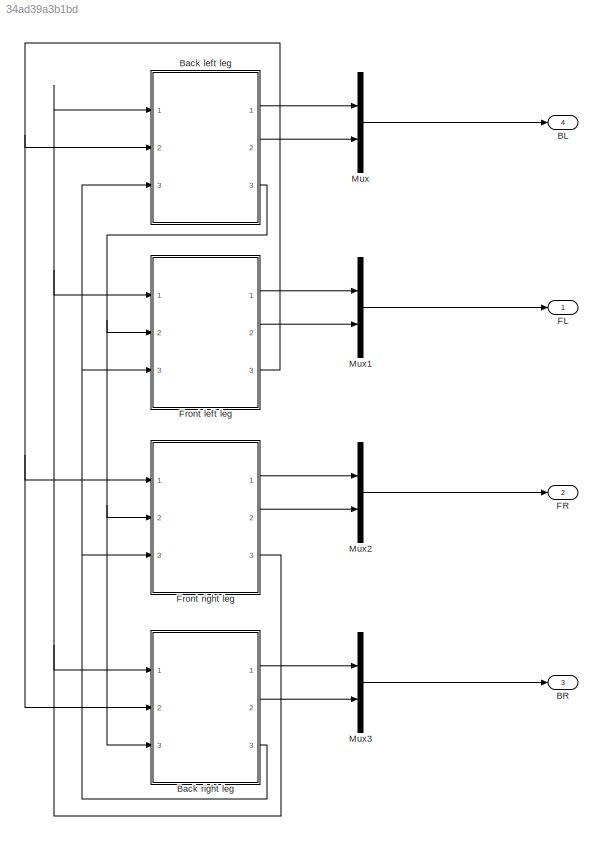
MODEL slx_34ad39a3b1bd
KIND model
CONFIG AbsTol = auto
CONFIG FixedStep = 0.001
CONFIG MaxStep = auto
CONFIG MinStep = auto
CONFIG RelTol = 1e-3
CONFIG SampleTimeConstraint = Unconstrained
CONFIG Solver = ode8
CONFIG SolverMode = Auto
CONFIG SolverName = ode8
CONFIG StartTime = 0.0
CONFIG StopTime = 20
BLOCK [Outport] BL
  IconDisplay = Port number
  Port = 4
BLOCK [Outport] BR
  IconDisplay = Port number
  Port = 3
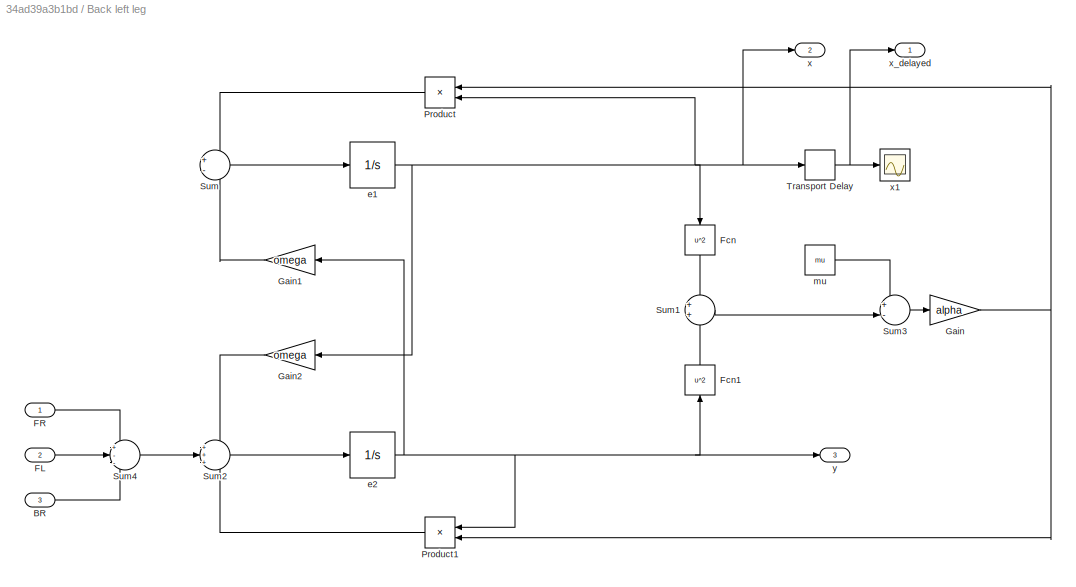
BLOCK [SubSystem] Back left leg
  Ports = [3, 3]
  RequestExecContextInheritance = off
BLOCK [Inport] Back left leg/BR
  IconDisplay = Port number
  Port = 3
BLOCK [Inport] Back left leg/FL
  IconDisplay = Port number
  Port = 2
BLOCK [Inport] Back left leg/FR
  IconDisplay = Port number
BLOCK [Fcn] Back left leg/Fcn
  Expr = u^2
BLOCK [Fcn] Back left leg/Fcn1
  Expr = u^2
BLOCK [Gain] Back left leg/Gain
  Gain = alpha
  OutDataTypeStr = Inherit: Inherit via internal rule
  ParamDataTypeStr = Inherit: Inherit via internal rule
  SaturateOnIntegerOverflow = off
BLOCK [Gain] Back left leg/Gain1
  Gain = omega
  OutDataTypeStr = Inherit: Inherit via internal rule
  ParamDataTypeStr = Inherit: Inherit via internal rule
  SaturateOnIntegerOverflow = off
BLOCK [Gain] Back left leg/Gain2
  Gain = omega
  OutDataTypeStr = Inherit: Inherit via internal rule
  ParamDataTypeStr = Inherit: Inherit via internal rule
  SaturateOnIntegerOverflow = off
BLOCK [Product] Back left leg/Product
  InputSameDT = off
  OutDataTypeStr = Inherit: Inherit via internal rule
  Ports = [2, 1]
  RndMeth = Floor
  SaturateOnIntegerOverflow = off
BLOCK [Product] Back left leg/Product1
  InputSameDT = off
  OutDataTypeStr = Inherit: Inherit via internal rule
  Ports = [2, 1]
  RndMeth = Floor
  SaturateOnIntegerOverflow = off
BLOCK [Sum] Back left leg/Sum
  IconShape = round
  InputSameDT = off
  Inputs = +-
  OutDataTypeStr = Inherit: Inherit via internal rule
  Ports = [2, 1]
  SaturateOnIntegerOverflow = off
BLOCK [Sum] Back left leg/Sum1
  IconShape = round
  InputSameDT = off
  OutDataTypeStr = Inherit: Inherit via internal rule
  Ports = [2, 1]
  SaturateOnIntegerOverflow = off
BLOCK [Sum] Back left leg/Sum2
  IconShape = round
  InputSameDT = off
  Inputs = +++
  OutDataTypeStr = Inherit: Inherit via internal rule
  Ports = [3, 1]
  SaturateOnIntegerOverflow = off
BLOCK [Sum] Back left leg/Sum3
  IconShape = round
  InputSameDT = off
  Inputs = +-|
  OutDataTypeStr = Inherit: Inherit via internal rule
  Ports = [2, 1]
  SaturateOnIntegerOverflow = off
BLOCK [Sum] Back left leg/Sum4
  IconShape = round
  InputSameDT = off
  Inputs = +--
  OutDataTypeStr = Inherit: Inherit via internal rule
  Ports = [3, 1]
  SaturateOnIntegerOverflow = off
BLOCK [TransportDelay] Back left leg/Transport Delay
  DelayTime = tau
  Ports = [1, 1]
BLOCK [Integrator] Back left leg/e1
  Ports = [1, 1]
BLOCK [Integrator] Back left leg/e2
  Ports = [1, 1]
BLOCK [Constant] Back left leg/mu
  Value = mu
BLOCK [Outport] Back left leg/x
  IconDisplay = Port number
  Port = 2
BLOCK [Scope] Back left leg/x1
  Floating = off
  NumInputPorts = 1
  Ports = [1]
  SaveName = ScopeData2
BLOCK [Outport] Back left leg/x_delayed
  IconDisplay = Port number
BLOCK [Outport] Back left leg/y
  IconDisplay = Port number
  Port = 3
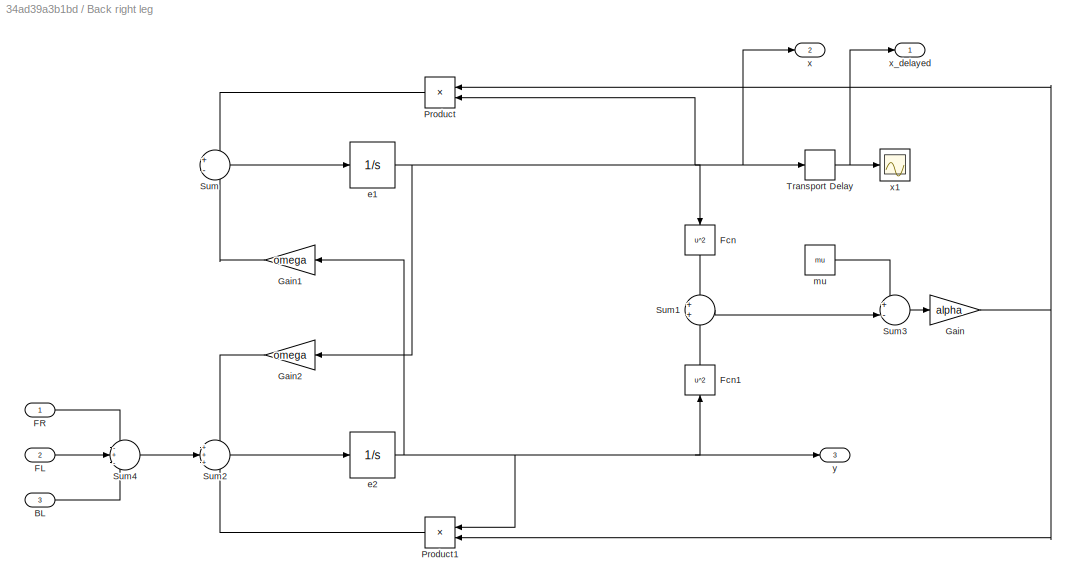
BLOCK [SubSystem] Back right leg
  Ports = [3, 3]
  RequestExecContextInheritance = off
BLOCK [Inport] Back right leg/BL
  IconDisplay = Port number
  Port = 3
BLOCK [Inport] Back right leg/FL
  IconDisplay = Port number
  Port = 2
BLOCK [Inport] Back right leg/FR
  IconDisplay = Port number
BLOCK [Fcn] Back right leg/Fcn
  Expr = u^2
BLOCK [Fcn] Back right leg/Fcn1
  Expr = u^2
BLOCK [Gain] Back right leg/Gain
  Gain = alpha
  OutDataTypeStr = Inherit: Inherit via internal rule
  ParamDataTypeStr = Inherit: Inherit via internal rule
  SaturateOnIntegerOverflow = off
BLOCK [Gain] Back right leg/Gain1
  Gain = omega
  OutDataTypeStr = Inherit: Inherit via internal rule
  ParamDataTypeStr = Inherit: Inherit via internal rule
  SaturateOnIntegerOverflow = off
BLOCK [Gain] Back right leg/Gain2
  Gain = omega
  OutDataTypeStr = Inherit: Inherit via internal rule
  ParamDataTypeStr = Inherit: Inherit via internal rule
  SaturateOnIntegerOverflow = off
BLOCK [Product] Back right leg/Product
  InputSameDT = off
  OutDataTypeStr = Inherit: Inherit via internal rule
  Ports = [2, 1]
  RndMeth = Floor
  SaturateOnIntegerOverflow = off
BLOCK [Product] Back right leg/Product1
  InputSameDT = off
  OutDataTypeStr = Inherit: Inherit via internal rule
  Ports = [2, 1]
  RndMeth = Floor
  SaturateOnIntegerOverflow = off
BLOCK [Sum] Back right leg/Sum
  IconShape = round
  InputSameDT = off
  Inputs = +-
  OutDataTypeStr = Inherit: Inherit via internal rule
  Ports = [2, 1]
  SaturateOnIntegerOverflow = off
BLOCK [Sum] Back right leg/Sum1
  IconShape = round
  InputSameDT = off
  OutDataTypeStr = Inherit: Inherit via internal rule
  Ports = [2, 1]
  SaturateOnIntegerOverflow = off
BLOCK [Sum] Back right leg/Sum2
  IconShape = round
  InputSameDT = off
  Inputs = +++
  OutDataTypeStr = Inherit: Inherit via internal rule
  Ports = [3, 1]
  SaturateOnIntegerOverflow = off
BLOCK [Sum] Back right leg/Sum3
  IconShape = round
  InputSameDT = off
  Inputs = +-|
  OutDataTypeStr = Inherit: Inherit via internal rule
  Ports = [2, 1]
  SaturateOnIntegerOverflow = off
BLOCK [Sum] Back right leg/Sum4
  IconShape = round
  InputSameDT = off
  Inputs = -+-
  OutDataTypeStr = Inherit: Inherit via internal rule
  Ports = [3, 1]
  SaturateOnIntegerOverflow = off
BLOCK [TransportDelay] Back right leg/Transport Delay
  DelayTime = tau
  Ports = [1, 1]
BLOCK [Integrator] Back right leg/e1
  Ports = [1, 1]
BLOCK [Integrator] Back right leg/e2
  Ports = [1, 1]
BLOCK [Constant] Back right leg/mu
  Value = mu
BLOCK [Outport] Back right leg/x
  IconDisplay = Port number
  Port = 2
BLOCK [Scope] Back right leg/x1
  Floating = off
  NumInputPorts = 1
  Ports = [1]
  SaveName = ScopeData2
BLOCK [Outport] Back right leg/x_delayed
  IconDisplay = Port number
BLOCK [Outport] Back right leg/y
  IconDisplay = Port number
  Port = 3
BLOCK [Outport] FL
  IconDisplay = Port number
BLOCK [Outport] FR
  IconDisplay = Port number
  Port = 2
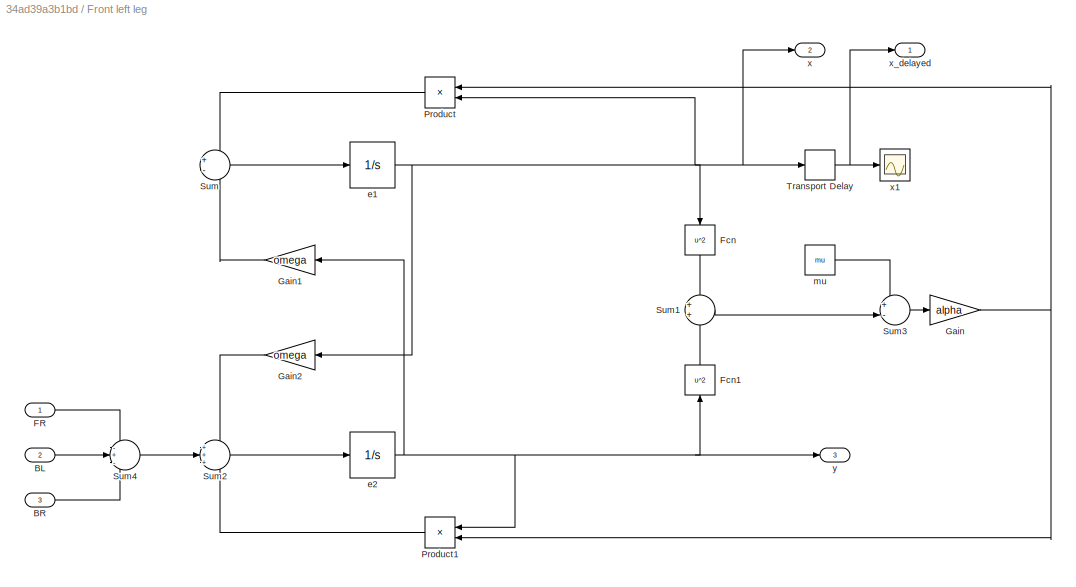
BLOCK [SubSystem] Front left leg
  Ports = [3, 3]
  RequestExecContextInheritance = off
BLOCK [Inport] Front left leg/BL
  IconDisplay = Port number
  Port = 2
BLOCK [Inport] Front left leg/BR
  IconDisplay = Port number
  Port = 3
BLOCK [Inport] Front left leg/FR
  IconDisplay = Port number
BLOCK [Fcn] Front left leg/Fcn
  Expr = u^2
BLOCK [Fcn] Front left leg/Fcn1
  Expr = u^2
BLOCK [Gain] Front left leg/Gain
  Gain = alpha
  OutDataTypeStr = Inherit: Inherit via internal rule
  ParamDataTypeStr = Inherit: Inherit via internal rule
  SaturateOnIntegerOverflow = off
BLOCK [Gain] Front left leg/Gain1
  Gain = omega
  OutDataTypeStr = Inherit: Inherit via internal rule
  ParamDataTypeStr = Inherit: Inherit via internal rule
  SaturateOnIntegerOverflow = off
BLOCK [Gain] Front left leg/Gain2
  Gain = omega
  OutDataTypeStr = Inherit: Inherit via internal rule
  ParamDataTypeStr = Inherit: Inherit via internal rule
  SaturateOnIntegerOverflow = off
BLOCK [Product] Front left leg/Product
  InputSameDT = off
  OutDataTypeStr = Inherit: Inherit via internal rule
  Ports = [2, 1]
  RndMeth = Floor
  SaturateOnIntegerOverflow = off
BLOCK [Product] Front left leg/Product1
  InputSameDT = off
  OutDataTypeStr = Inherit: Inherit via internal rule
  Ports = [2, 1]
  RndMeth = Floor
  SaturateOnIntegerOverflow = off
BLOCK [Sum] Front left leg/Sum
  IconShape = round
  InputSameDT = off
  Inputs = +-
  OutDataTypeStr = Inherit: Inherit via internal rule
  Ports = [2, 1]
  SaturateOnIntegerOverflow = off
BLOCK [Sum] Front left leg/Sum1
  IconShape = round
  InputSameDT = off
  OutDataTypeStr = Inherit: Inherit via internal rule
  Ports = [2, 1]
  SaturateOnIntegerOverflow = off
BLOCK [Sum] Front left leg/Sum2
  IconShape = round
  InputSameDT = off
  Inputs = +++
  OutDataTypeStr = Inherit: Inherit via internal rule
  Ports = [3, 1]
  SaturateOnIntegerOverflow = off
BLOCK [Sum] Front left leg/Sum3
  IconShape = round
  InputSameDT = off
  Inputs = +-|
  OutDataTypeStr = Inherit: Inherit via internal rule
  Ports = [2, 1]
  SaturateOnIntegerOverflow = off
BLOCK [Sum] Front left leg/Sum4
  IconShape = round
  InputSameDT = off
  Inputs = -+-
  OutDataTypeStr = Inherit: Inherit via internal rule
  Ports = [3, 1]
  SaturateOnIntegerOverflow = off
BLOCK [TransportDelay] Front left leg/Transport Delay
  DelayTime = tau
  Ports = [1, 1]
BLOCK [Integrator] Front left leg/e1
  InitialCondition = 1
  Ports = [1, 1]
BLOCK [Integrator] Front left leg/e2
  Ports = [1, 1]
BLOCK [Constant] Front left leg/mu
  Value = mu
BLOCK [Outport] Front left leg/x
  IconDisplay = Port number
  Port = 2
BLOCK [Scope] Front left leg/x1
  Floating = off
  NumInputPorts = 1
  Ports = [1]
  SaveName = ScopeData2
BLOCK [Outport] Front left leg/x_delayed
  IconDisplay = Port number
BLOCK [Outport] Front left leg/y
  IconDisplay = Port number
  Port = 3
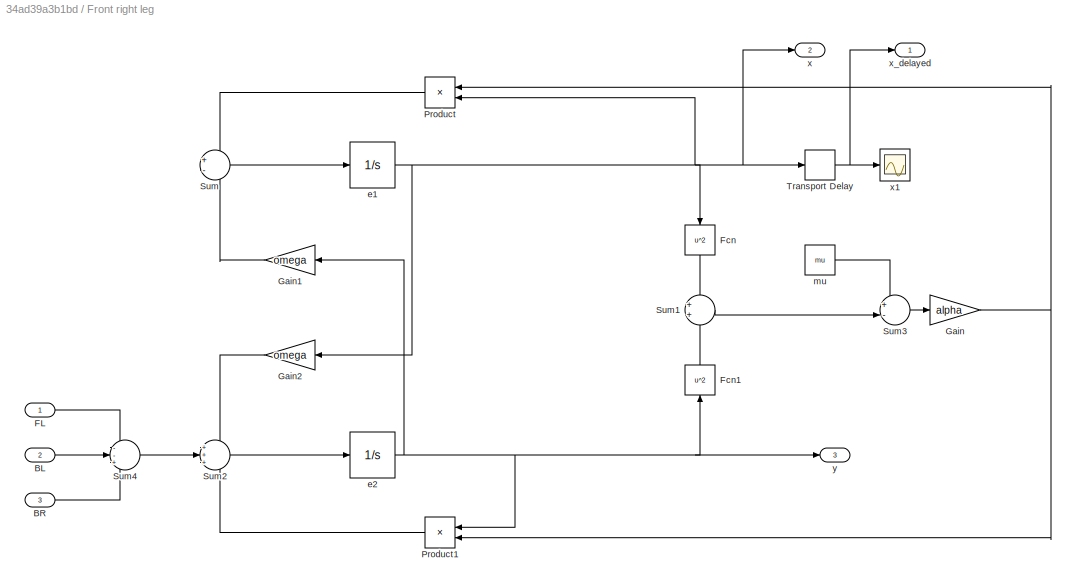
BLOCK [SubSystem] Front right leg
  Ports = [3, 3]
  RequestExecContextInheritance = off
BLOCK [Inport] Front right leg/BL
  IconDisplay = Port number
  Port = 2
BLOCK [Inport] Front right leg/BR
  IconDisplay = Port number
  Port = 3
BLOCK [Inport] Front right leg/FL
  IconDisplay = Port number
BLOCK [Fcn] Front right leg/Fcn
  Expr = u^2
BLOCK [Fcn] Front right leg/Fcn1
  Expr = u^2
BLOCK [Gain] Front right leg/Gain
  Gain = alpha
  OutDataTypeStr = Inherit: Inherit via internal rule
  ParamDataTypeStr = Inherit: Inherit via internal rule
  SaturateOnIntegerOverflow = off
BLOCK [Gain] Front right leg/Gain1
  Gain = omega
  OutDataTypeStr = Inherit: Inherit via internal rule
  ParamDataTypeStr = Inherit: Inherit via internal rule
  SaturateOnIntegerOverflow = off
BLOCK [Gain] Front right leg/Gain2
  Gain = omega
  OutDataTypeStr = Inherit: Inherit via internal rule
  ParamDataTypeStr = Inherit: Inherit via internal rule
  SaturateOnIntegerOverflow = off
BLOCK [Product] Front right leg/Product
  InputSameDT = off
  OutDataTypeStr = Inherit: Inherit via internal rule
  Ports = [2, 1]
  RndMeth = Floor
  SaturateOnIntegerOverflow = off
BLOCK [Product] Front right leg/Product1
  InputSameDT = off
  OutDataTypeStr = Inherit: Inherit via internal rule
  Ports = [2, 1]
  RndMeth = Floor
  SaturateOnIntegerOverflow = off
BLOCK [Sum] Front right leg/Sum
  IconShape = round
  InputSameDT = off
  Inputs = +-
  OutDataTypeStr = Inherit: Inherit via internal rule
  Ports = [2, 1]
  SaturateOnIntegerOverflow = off
BLOCK [Sum] Front right leg/Sum1
  IconShape = round
  InputSameDT = off
  OutDataTypeStr = Inherit: Inherit via internal rule
  Ports = [2, 1]
  SaturateOnIntegerOverflow = off
BLOCK [Sum] Front right leg/Sum2
  IconShape = round
  InputSameDT = off
  Inputs = +++
  OutDataTypeStr = Inherit: Inherit via internal rule
  Ports = [3, 1]
  SaturateOnIntegerOverflow = off
BLOCK [Sum] Front right leg/Sum3
  IconShape = round
  InputSameDT = off
  Inputs = +-|
  OutDataTypeStr = Inherit: Inherit via internal rule
  Ports = [2, 1]
  SaturateOnIntegerOverflow = off
BLOCK [Sum] Front right leg/Sum4
  IconShape = round
  InputSameDT = off
  Inputs = --+
  OutDataTypeStr = Inherit: Inherit via internal rule
  Ports = [3, 1]
  SaturateOnIntegerOverflow = off
BLOCK [TransportDelay] Front right leg/Transport Delay
  DelayTime = tau
  Ports = [1, 1]
BLOCK [Integrator] Front right leg/e1
  Ports = [1, 1]
BLOCK [Integrator] Front right leg/e2
  Ports = [1, 1]
BLOCK [Constant] Front right leg/mu
  Value = mu
BLOCK [Outport] Front right leg/x
  IconDisplay = Port number
  Port = 2
BLOCK [Scope] Front right leg/x1
  Floating = off
  NumInputPorts = 1
  Ports = [1]
  SaveName = ScopeData2
BLOCK [Outport] Front right leg/x_delayed
  IconDisplay = Port number
BLOCK [Outport] Front right leg/y
  IconDisplay = Port number
  Port = 3
BLOCK [Mux] Mux
  DisplayOption = bar
  Inputs = 2
  Ports = [2, 1]
BLOCK [Mux] Mux1
  DisplayOption = bar
  Inputs = 2
  Ports = [2, 1]
BLOCK [Mux] Mux2
  DisplayOption = bar
  Inputs = 2
  Ports = [2, 1]
BLOCK [Mux] Mux3
  DisplayOption = bar
  Inputs = 2
  Ports = [2, 1]
LINE Back left leg/BR:1 -> Back left leg/Sum4:3
LINE Back left leg/FL:1 -> Back left leg/Sum4:2
LINE Back left leg/FR:1 -> Back left leg/Sum4:1
LINE Back left leg/Fcn1:1 -> Back left leg/Sum1:2
LINE Back left leg/Fcn:1 -> Back left leg/Sum1:1
LINE Back left leg/Gain1:1 -> Back left leg/Sum:2
LINE Back left leg/Gain2:1 -> Back left leg/Sum2:1
NET Back left leg/Gain:1 -> Back left leg/Product1:2, Back left leg/Product:1
LINE Back left leg/Product1:1 -> Back left leg/Sum2:3
LINE Back left leg/Product:1 -> Back left leg/Sum:1
LINE Back left leg/Sum1:1 -> Back left leg/Sum3:2
LINE Back left leg/Sum2:1 -> Back left leg/e2:1
LINE Back left leg/Sum3:1 -> Back left leg/Gain:1
LINE Back left leg/Sum4:1 -> Back left leg/Sum2:2
LINE Back left leg/Sum:1 -> Back left leg/e1:1
NET Back left leg/Transport Delay:1 -> Back left leg/x1:1, Back left leg/x_delayed:1
NET Back left leg/e1:1 -> Back left leg/Fcn:1, Back left leg/Gain2:1, Back left leg/Product:2, Back left leg/Transport Delay:1, Back left leg/x:1
NET Back left leg/e2:1 -> Back left leg/Fcn1:1, Back left leg/Gain1:1, Back left leg/Product1:1, Back left leg/y:1
LINE Back left leg/mu:1 -> Back left leg/Sum3:1
LINE Back left leg:1 -> Mux:1
LINE Back left leg:2 -> Mux:2
NET Back left leg:3 -> Back right leg:3, Front left leg:2, Front right leg:2
LINE Back right leg/BL:1 -> Back right leg/Sum4:3
LINE Back right leg/FL:1 -> Back right leg/Sum4:2
LINE Back right leg/FR:1 -> Back right leg/Sum4:1
LINE Back right leg/Fcn1:1 -> Back right leg/Sum1:2
LINE Back right leg/Fcn:1 -> Back right leg/Sum1:1
LINE Back right leg/Gain1:1 -> Back right leg/Sum:2
LINE Back right leg/Gain2:1 -> Back right leg/Sum2:1
NET Back right leg/Gain:1 -> Back right leg/Product1:2, Back right leg/Product:1
LINE Back right leg/Product1:1 -> Back right leg/Sum2:3
LINE Back right leg/Product:1 -> Back right leg/Sum:1
LINE Back right leg/Sum1:1 -> Back right leg/Sum3:2
LINE Back right leg/Sum2:1 -> Back right leg/e2:1
LINE Back right leg/Sum3:1 -> Back right leg/Gain:1
LINE Back right leg/Sum4:1 -> Back right leg/Sum2:2
LINE Back right leg/Sum:1 -> Back right leg/e1:1
NET Back right leg/Transport Delay:1 -> Back right leg/x1:1, Back right leg/x_delayed:1
NET Back right leg/e1:1 -> Back right leg/Fcn:1, Back right leg/Gain2:1, Back right leg/Product:2, Back right leg/Transport Delay:1, Back right leg/x:1
NET Back right leg/e2:1 -> Back right leg/Fcn1:1, Back right leg/Gain1:1, Back right leg/Product1:1, Back right leg/y:1
LINE Back right leg/mu:1 -> Back right leg/Sum3:1
LINE Back right leg:1 -> Mux3:1
LINE Back right leg:2 -> Mux3:2
NET Back right leg:3 -> Back left leg:3, Front left leg:3, Front right leg:3
LINE Front left leg/BL:1 -> Front left leg/Sum4:2
LINE Front left leg/BR:1 -> Front left leg/Sum4:3
LINE Front left leg/FR:1 -> Front left leg/Sum4:1
LINE Front left leg/Fcn1:1 -> Front left leg/Sum1:2
LINE Front left leg/Fcn:1 -> Front left leg/Sum1:1
LINE Front left leg/Gain1:1 -> Front left leg/Sum:2
LINE Front left leg/Gain2:1 -> Front left leg/Sum2:1
NET Front left leg/Gain:1 -> Front left leg/Product1:2, Front left leg/Product:1
LINE Front left leg/Product1:1 -> Front left leg/Sum2:3
LINE Front left leg/Product:1 -> Front left leg/Sum:1
LINE Front left leg/Sum1:1 -> Front left leg/Sum3:2
LINE Front left leg/Sum2:1 -> Front left leg/e2:1
LINE Front left leg/Sum3:1 -> Front left leg/Gain:1
LINE Front left leg/Sum4:1 -> Front left leg/Sum2:2
LINE Front left leg/Sum:1 -> Front left leg/e1:1
NET Front left leg/Transport Delay:1 -> Front left leg/x1:1, Front left leg/x_delayed:1
NET Front left leg/e1:1 -> Front left leg/Fcn:1, Front left leg/Gain2:1, Front left leg/Product:2, Front left leg/Transport Delay:1, Front left leg/x:1
NET Front left leg/e2:1 -> Front left leg/Fcn1:1, Front left leg/Gain1:1, Front left leg/Product1:1, Front left leg/y:1
LINE Front left leg/mu:1 -> Front left leg/Sum3:1
LINE Front left leg:1 -> Mux1:1
LINE Front left leg:2 -> Mux1:2
NET Front left leg:3 -> Back left leg:2, Back right leg:2, Front right leg:1
LINE Front right leg/BL:1 -> Front right leg/Sum4:2
LINE Front right leg/BR:1 -> Front right leg/Sum4:3
LINE Front right leg/FL:1 -> Front right leg/Sum4:1
LINE Front right leg/Fcn1:1 -> Front right leg/Sum1:2
LINE Front right leg/Fcn:1 -> Front right leg/Sum1:1
LINE Front right leg/Gain1:1 -> Front right leg/Sum:2
LINE Front right leg/Gain2:1 -> Front right leg/Sum2:1
NET Front right leg/Gain:1 -> Front right leg/Product1:2, Front right leg/Product:1
LINE Front right leg/Product1:1 -> Front right leg/Sum2:3
LINE Front right leg/Product:1 -> Front right leg/Sum:1
LINE Front right leg/Sum1:1 -> Front right leg/Sum3:2
LINE Front right leg/Sum2:1 -> Front right leg/e2:1
LINE Front right leg/Sum3:1 -> Front right leg/Gain:1
LINE Front right leg/Sum4:1 -> Front right leg/Sum2:2
LINE Front right leg/Sum:1 -> Front right leg/e1:1
NET Front right leg/Transport Delay:1 -> Front right leg/x1:1, Front right leg/x_delayed:1
NET Front right leg/e1:1 -> Front right leg/Fcn:1, Front right leg/Gain2:1, Front right leg/Product:2, Front right leg/Transport Delay:1, Front right leg/x:1
NET Front right leg/e2:1 -> Front right leg/Fcn1:1, Front right leg/Gain1:1, Front right leg/Product1:1, Front right leg/y:1
LINE Front right leg/mu:1 -> Front right leg/Sum3:1
LINE Front right leg:1 -> Mux2:1
LINE Front right leg:2 -> Mux2:2
NET Front right leg:3 -> Back left leg:1, Back right leg:1, Front left leg:1
LINE Mux1:1 -> FL:1
LINE Mux2:1 -> FR:1
LINE Mux3:1 -> BR:1
LINE Mux:1 -> BL:1
note: NET lines group one-source signal fan-out (src -> all destinations, sorted); 1:1 wires keep LINE
